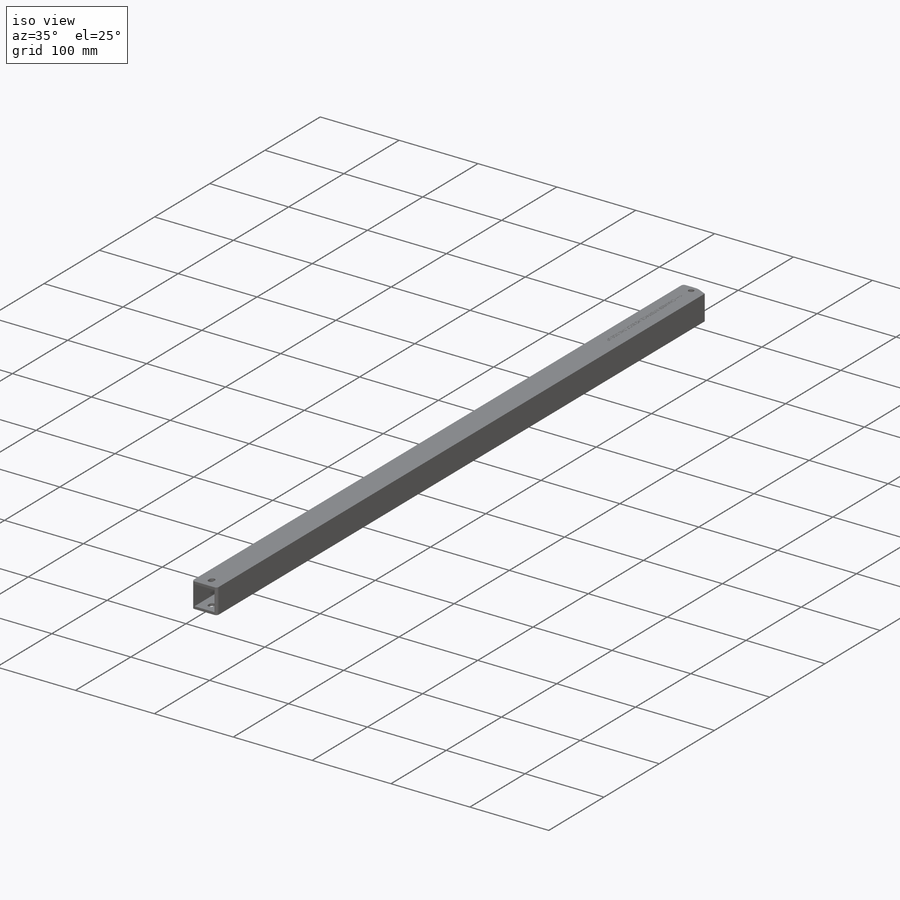
[diagram: iso view]
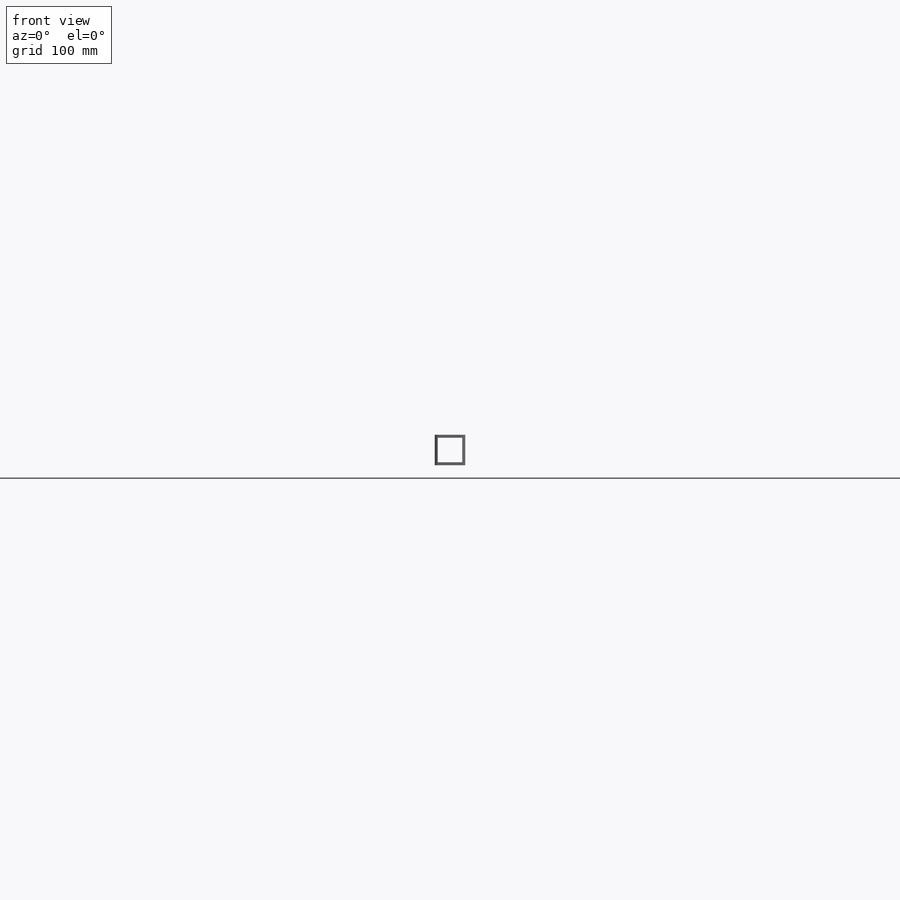
[diagram: front view]
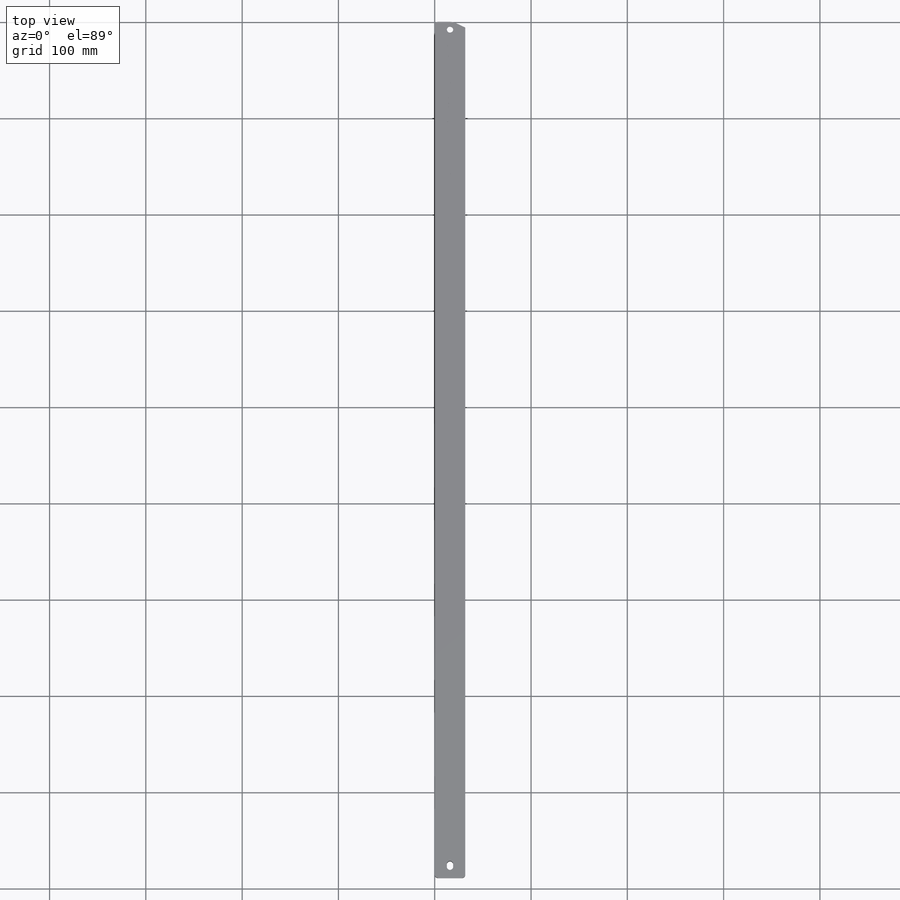
[diagram: top view]
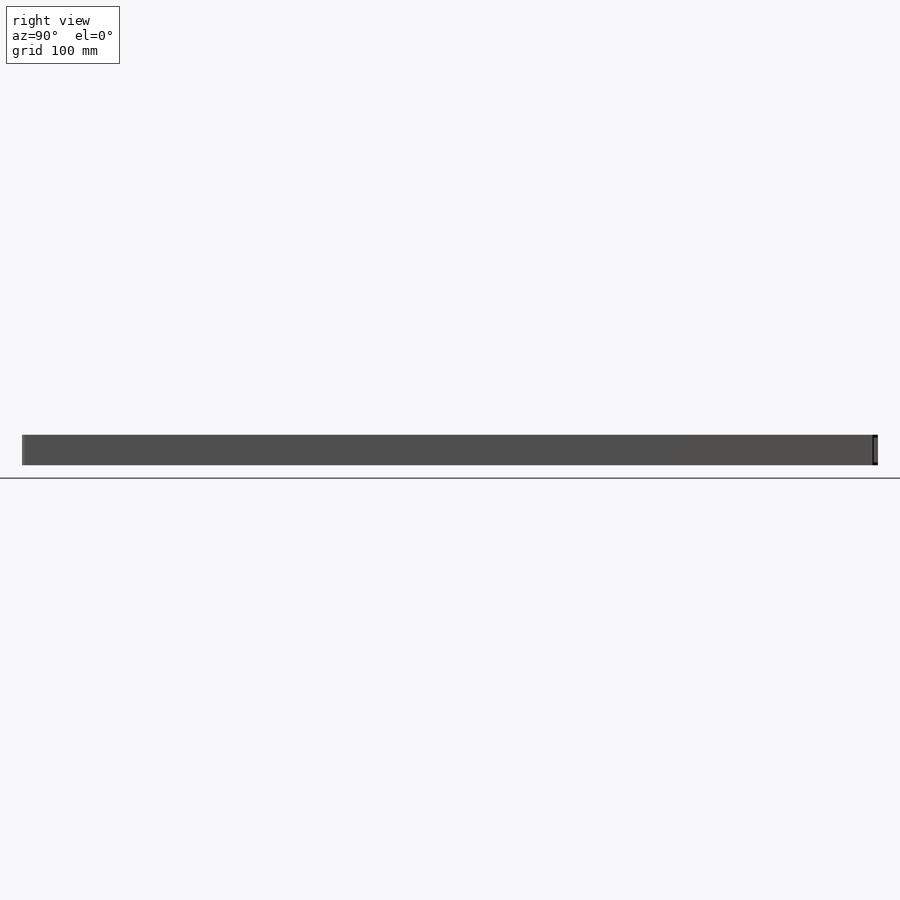
[diagram: right view]
SOLIDWORKS PART (.sldprt)
format: sldprt  version: not decoded by parser v0  size: 1,384,448 bytes
history: native  units: mm
features: sketch x13, cut_extrude x6, fillet x2, hole x2, pattern_linear x2, material x1, extrude x1, chamfer x1 + 1 further entry (+14 scaffold rows collapsed)
feature tree (43):
  scaffold x14  (default folders/planes/origin — collapsed)
  material  "6063-T5"
  "Origin"  ID=-1
  sketch  "Sketch1"  dims[D1=25.4mm D2=31.6865mm]
  extrude  "Boss-Extrude1"  Depth=889mm
  sketch  "Sketch2"  dims[D1=3.175mm]
  cut_extrude  "Cut-Extrude1"  [1 undecoded]
  sketch  "Sketch3"
  sketch  "Sketch4"
  sketch  "Sketch6"  dims[c1.D1=6.35mm c1.D2=6.604mm c1.D7=3.302mm c1.D3=9.525mm c1.D4=9.525mm c2.D3=7.9375mm c2.D4=12.7mm c2.D5=11.43mm c2.D6=12.7mm c3.D4=~15.84325mm c3.D6=15.875mm c3.D1=~15.84325mm c4.D6=2.54mm]
  cut_extrude  "Cut-Extrude3"  [1 undecoded]
  chamfer  "Chamfer1"  Distance=12.7mm Angle=25deg
  fillet  "Fillet1"  Radius=12.7mm
  fillet  "Fillet2"  Radius=3.175mm
  sketch  "Sketch7"  dims[D1=~136.292786mm D2=12.7mm D3=152.4mm D4=15.8115mm]
  cut_extrude  "Cut-Extrude4"  [1 undecoded]
  hole  "#8 Clearance Hole1"  Diameter=4.4958mm Depth=31.6865mm
  sketch  "Sketch9"  dims[D1=~15.84325mm D2=~163.194543mm]
  sketch  "Sketch8"  dims[hole-wizard template sketch: 60 standard entries collapsed; hole parameters kept: c18.Thru Hole Depth=31.6865mm]
  pattern_linear  "LPattern1"  Count1=2 Count2=1 Spacing1=254mm Spacing2=2.54mm
  sketch  "Sketch10"  dims[D3=6.35mm D1=177.8mm D2=12.7mm D4=~15.84325mm]
  cut_extrude  "Cut-Extrude5"  [1 undecoded]
  hole  "#8 Clearance Hole2"  Diameter=4.4958mm Depth=31.6865mm
  sketch  "Sketch12"  dims[D1=177.8mm D2=~15.84325mm]
  sketch  "Sketch11"  dims[hole-wizard template sketch: 60 standard entries collapsed; hole parameters kept: c18.Thru Hole Depth=31.6865mm]
  pattern_linear  "LPattern2"  Count1=2 Count2=1 Spacing1=203.2mm Spacing2=2.54mm
  sketch  "Sketch13"
  cut_extrude  "Cut-Extrude6"  Depth=0.508mm
  sketch  "Sketch14"
  cut_extrude  "Cut-Extrude7"  Depth=0.508mm
decode coverage: 19 of 27 modeling features carry decoded parameters; 1 rows unclassified (native names shown)
note: ~ marks probable driven/reference dimensions
note: 4 parameter values undecoded
summary: no parameter record found for 4 features
note: suppression state not decoded; provenance and decode notes live in map.json
